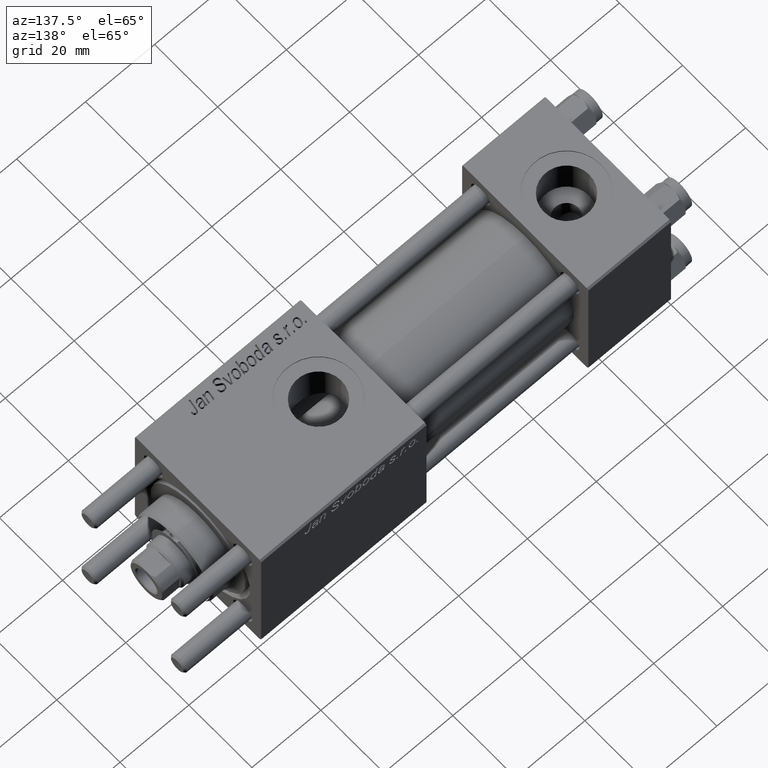
[diagram: clean part render]
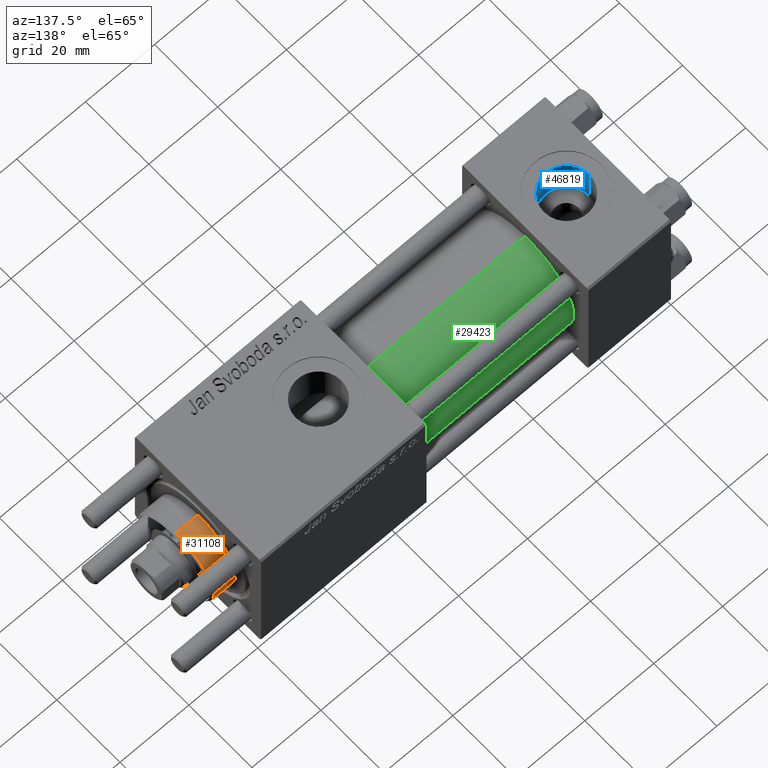
[diagram: same view with three faces highlighted in distinct colors, each labeled with its STEP entity id]
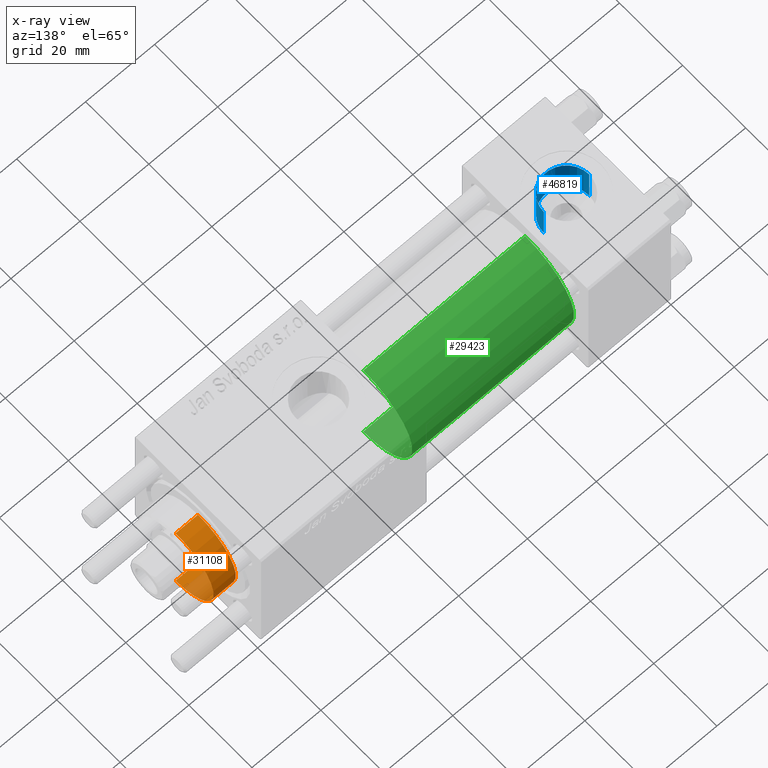
[diagram: x-ray of the same camera — body ghosted, the three highlighted faces saturated]
A machine part, auxiliary view with three faces highlighted in distinct colors.
The next image is the same camera in x-ray (body ghosted, the three faces saturated) — at least one of them is partly hidden behind the body in this view.
Their STEP definitions:

[orange] entity #31108 — the highlighted cylindrical surface (partial cylindrical patch) has radius 12 mm, axis along (-1, -0, 0).
#4211 = EDGE_CURVE ( 'NONE', #33591, #38277, #31449, .T. ) ;
#4609 = CARTESIAN_POINT ( 'NONE',  ( -12.00000000000000178, 0.000000000000000000, 28.69999999999999929 ) ) ;
#7167 = CARTESIAN_POINT ( 'NONE',  ( 12.00000000000000178, 1.469576158976824144E-15, 35.70000000000000284 ) ) ;
#12192 = CARTESIAN_POINT ( 'NONE',  ( 0.000000000000000000, 0.000000000000000000, 28.69999999999999929 ) ) ;
#15339 = VERTEX_POINT ( 'NONE', #40300 ) ;
#17027 = DIRECTION ( 'NONE',  ( -1.000000000000000000, 0.000000000000000000, 0.000000000000000000 ) ) ;
#20245 = DIRECTION ( 'NONE',  ( 1.000000000000000000, 0.000000000000000000, 0.000000000000000000 ) ) ;
#20886 = CIRCLE ( 'NONE', #48440, 12.00000000000000178 ) ;
#22110 = ORIENTED_EDGE ( 'NONE', *, *, #47330, .T. ) ;
#26205 = EDGE_CURVE ( 'NONE', #15339, #28042, #47159, .T. ) ;
#27081 = AXIS2_PLACEMENT_3D ( 'NONE', #42114, #50183, #37801 ) ;
#28042 = VERTEX_POINT ( 'NONE', #45214 ) ;
#31108 = ADVANCED_FACE ( 'NONE', ( #51842 ), #56445, .T. ) ;
#31449 = LINE ( 'NONE', #53891, #35784 ) ;
#33591 = VERTEX_POINT ( 'NONE', #42861 ) ;
#35784 = VECTOR ( 'NONE', #48999, 1000.000000000000000 ) ;
#36299 = CIRCLE ( 'NONE', #27081, 12.00000000000000178 ) ;
#36995 = DIRECTION ( 'NONE',  ( -0.000000000000000000, -0.000000000000000000, -1.000000000000000000 ) ) ;
#37714 = EDGE_LOOP ( 'NONE', ( #52486, #41106, #22110, #41461 ) ) ;
#37801 = DIRECTION ( 'NONE',  ( 1.000000000000000000, 0.000000000000000000, 0.000000000000000000 ) ) ;
#38277 = VERTEX_POINT ( 'NONE', #4609 ) ;
#38333 = CARTESIAN_POINT ( 'NONE',  ( 0.000000000000000000, 0.000000000000000000, 35.70000000000000284 ) ) ;
#38535 = DIRECTION ( 'NONE',  ( -0.000000000000000000, -0.000000000000000000, -1.000000000000000000 ) ) ;
#40300 = CARTESIAN_POINT ( 'NONE',  ( 12.00000000000000178, 1.469576158976824144E-15, 35.19999999999999574 ) ) ;
#41106 = ORIENTED_EDGE ( 'NONE', *, *, #26205, .T. ) ;
#41461 = ORIENTED_EDGE ( 'NONE', *, *, #4211, .F. ) ;
#41603 = AXIS2_PLACEMENT_3D ( 'NONE', #38333, #36995, #17027 ) ;
#42114 = CARTESIAN_POINT ( 'NONE',  ( 0.000000000000000000, 0.000000000000000000, 35.19999999999999574 ) ) ;
#42325 = EDGE_CURVE ( 'NONE', #33591, #15339, #36299, .T. ) ;
#42382 = VECTOR ( 'NONE', #38535, 1000.000000000000000 ) ;
#42861 = CARTESIAN_POINT ( 'NONE',  ( -12.00000000000000178, 0.000000000000000000, 35.19999999999999574 ) ) ;
#45214 = CARTESIAN_POINT ( 'NONE',  ( 12.00000000000000178, 1.469576158976824144E-15, 28.69999999999999929 ) ) ;
#47159 = LINE ( 'NONE', #7167, #42382 ) ;
#47330 = EDGE_CURVE ( 'NONE', #28042, #38277, #20886, .T. ) ;
#48440 = AXIS2_PLACEMENT_3D ( 'NONE', #12192, #56200, #20245 ) ;
#48999 = DIRECTION ( 'NONE',  ( -0.000000000000000000, -0.000000000000000000, -1.000000000000000000 ) ) ;
#50183 = DIRECTION ( 'NONE',  ( 0.000000000000000000, 0.000000000000000000, -1.000000000000000000 ) ) ;
#51842 = FACE_OUTER_BOUND ( 'NONE', #37714, .T. ) ;
#52486 = ORIENTED_EDGE ( 'NONE', *, *, #42325, .T. ) ;
#53891 = CARTESIAN_POINT ( 'NONE',  ( -12.00000000000000178, 0.000000000000000000, 35.70000000000000284 ) ) ;
#56200 = DIRECTION ( 'NONE',  ( 0.000000000000000000, 0.000000000000000000, 1.000000000000000000 ) ) ;
#56445 = CYLINDRICAL_SURFACE ( 'NONE', #41603, 12.00000000000000178 ) ;

[blue] entity #46819 — the highlighted cylindrical surface (edge-blend (fillet) strip) has radius 6.58 mm, axis along (0, 0, 1).
#2853 = EDGE_CURVE ( 'NONE', #7565, #17737, #18337, .T. ) ;
#5372 = ORIENTED_EDGE ( 'NONE', *, *, #54214, .T. ) ;
#6007 = DIRECTION ( 'NONE',  ( -0.000000000000000000, -0.000000000000000000, -1.000000000000000000 ) ) ;
#6368 = DIRECTION ( 'NONE',  ( 1.000000000000000000, 0.000000000000000000, 0.000000000000000000 ) ) ;
#7354 = CARTESIAN_POINT ( 'NONE',  ( 5.420000000000000817, 8.058175938389596335E-16, 9.165987261146492315 ) ) ;
#7565 = VERTEX_POINT ( 'NONE', #7354 ) ;
#10749 = ORIENTED_EDGE ( 'NONE', *, *, #2853, .T. ) ;
#13539 = AXIS2_PLACEMENT_3D ( 'NONE', #46066, #27672, #6368 ) ;
#14531 = DIRECTION ( 'NONE',  ( 0.000000000000000000, 0.000000000000000000, 1.000000000000000000 ) ) ;
#16325 = VERTEX_POINT ( 'NONE', #54430 ) ;
#17326 = VECTOR ( 'NONE', #53446, 1000.000000000000000 ) ;
#17722 = ORIENTED_EDGE ( 'NONE', *, *, #41247, .T. ) ;
#17737 = VERTEX_POINT ( 'NONE', #56345 ) ;
#18337 = LINE ( 'NONE', #49410, #17326 ) ;
#18858 = LINE ( 'NONE', #22880, #43936 ) ;
#22880 = CARTESIAN_POINT ( 'NONE',  ( 18.57999999999999829, 1.540743955509788682E-30, 9.199999999999995737 ) ) ;
#23907 = AXIS2_PLACEMENT_3D ( 'NONE', #48468, #14531, #48191 ) ;
#27672 = DIRECTION ( 'NONE',  ( -0.000000000000000000, -0.000000000000000000, 1.000000000000000000 ) ) ;
#28134 = EDGE_LOOP ( 'NONE', ( #17722, #10749, #5372, #53421 ) ) ;
#28887 = CIRCLE ( 'NONE', #33495, 6.579999999999999183 ) ;
#33067 = CIRCLE ( 'NONE', #23907, 6.579999999999999183 ) ;
#33495 = AXIS2_PLACEMENT_3D ( 'NONE', #41387, #6007, #49740 ) ;
#36308 = CYLINDRICAL_SURFACE ( 'NONE', #13539, 6.579999999999999183 ) ;
#41247 = EDGE_CURVE ( 'NONE', #55816, #7565, #28887, .T. ) ;
#41387 = CARTESIAN_POINT ( 'NONE',  ( 12.00000000000000000, 1.540743955509788682E-30, 9.165987261146492315 ) ) ;
#43936 = VECTOR ( 'NONE', #53957, 1000.000000000000000 ) ;
#46066 = CARTESIAN_POINT ( 'NONE',  ( 12.00000000000000000, 1.540743955509788682E-30, 9.199999999999995737 ) ) ;
#46819 = ADVANCED_FACE ( 'NONE', ( #53861 ), #36308, .F. ) ;
#46958 = CARTESIAN_POINT ( 'NONE',  ( 18.57999999999999829, 1.540743955509788682E-30, 9.165987261146492315 ) ) ;
#48191 = DIRECTION ( 'NONE',  ( 1.000000000000000000, 0.000000000000000000, 0.000000000000000000 ) ) ;
#48468 = CARTESIAN_POINT ( 'NONE',  ( 12.00000000000000000, 1.540743955509788682E-30, 19.79999999999999716 ) ) ;
#49052 = EDGE_CURVE ( 'NONE', #55816, #16325, #18858, .T. ) ;
#49410 = CARTESIAN_POINT ( 'NONE',  ( 5.420000000000000817, 8.058175938389596335E-16, 9.199999999999995737 ) ) ;
#49740 = DIRECTION ( 'NONE',  ( 1.000000000000000000, 0.000000000000000000, 0.000000000000000000 ) ) ;
#53421 = ORIENTED_EDGE ( 'NONE', *, *, #49052, .F. ) ;
#53446 = DIRECTION ( 'NONE',  ( -0.000000000000000000, -0.000000000000000000, 1.000000000000000000 ) ) ;
#53861 = FACE_OUTER_BOUND ( 'NONE', #28134, .T. ) ;
#53957 = DIRECTION ( 'NONE',  ( -0.000000000000000000, -0.000000000000000000, 1.000000000000000000 ) ) ;
#54214 = EDGE_CURVE ( 'NONE', #17737, #16325, #33067, .T. ) ;
#54430 = CARTESIAN_POINT ( 'NONE',  ( 18.57999999999999829, 1.540743955509788682E-30, 19.79999999999999716 ) ) ;
#55816 = VERTEX_POINT ( 'NONE', #46958 ) ;
#56345 = CARTESIAN_POINT ( 'NONE',  ( 5.420000000000000817, 8.058175938389596335E-16, 19.79999999999999716 ) ) ;

[green] entity #29423 — the highlighted cylindrical surface (partial cylindrical patch) has radius 15.5 mm, axis along (-1, -0, -0).
#1096 = DIRECTION ( 'NONE',  ( -1.000000000000000000, -0.000000000000000000, -0.000000000000000000 ) ) ;
#4080 = CARTESIAN_POINT ( 'NONE',  ( 24.00000000000000000, -2.602085213965210642E-15, 15.50000000000000000 ) ) ;
#7541 = AXIS2_PLACEMENT_3D ( 'NONE', #8370, #25923, #22155 ) ;
#8370 = CARTESIAN_POINT ( 'NONE',  ( 71.00000000000001421, -2.602085213965210642E-15, 0.000000000000000000 ) ) ;
#8476 = CIRCLE ( 'NONE', #14908, 15.50000000000000000 ) ;
#8833 = ORIENTED_EDGE ( 'NONE', *, *, #51184, .F. ) ;
#10347 = CARTESIAN_POINT ( 'NONE',  ( 24.00000000000000000, -7.038826752868131828E-16, -15.50000000000000000 ) ) ;
#10622 = EDGE_CURVE ( 'NONE', #54151, #22218, #8476, .T. ) ;
#14382 = ORIENTED_EDGE ( 'NONE', *, *, #28089, .T. ) ;
#14908 = AXIS2_PLACEMENT_3D ( 'NONE', #20307, #24904, #47057 ) ;
#17646 = EDGE_LOOP ( 'NONE', ( #22106, #14382, #48593, #8833 ) ) ;
#20307 = CARTESIAN_POINT ( 'NONE',  ( 71.00000000000001421, -2.602085213965210642E-15, 0.000000000000000000 ) ) ;
#22106 = ORIENTED_EDGE ( 'NONE', *, *, #10622, .F. ) ;
#22155 = DIRECTION ( 'NONE',  ( 0.000000000000000000, 0.000000000000000000, 1.000000000000000000 ) ) ;
#22218 = VERTEX_POINT ( 'NONE', #38462 ) ;
#24904 = DIRECTION ( 'NONE',  ( 1.000000000000000000, 0.000000000000000000, 0.000000000000000000 ) ) ;
#25105 = VERTEX_POINT ( 'NONE', #10347 ) ;
#25923 = DIRECTION ( 'NONE',  ( -1.000000000000000000, -0.000000000000000000, -0.000000000000000000 ) ) ;
#26738 = DIRECTION ( 'NONE',  ( 0.000000000000000000, 0.000000000000000000, 1.000000000000000000 ) ) ;
#27471 = CARTESIAN_POINT ( 'NONE',  ( 71.00000000000001421, -7.038826752868131828E-16, -15.50000000000000000 ) ) ;
#28089 = EDGE_CURVE ( 'NONE', #54151, #25105, #45765, .T. ) ;
#29423 = ADVANCED_FACE ( 'NONE', ( #35122 ), #47786, .T. ) ;
#35122 = FACE_OUTER_BOUND ( 'NONE', #17646, .T. ) ;
#38462 = CARTESIAN_POINT ( 'NONE',  ( 71.00000000000001421, -2.602085213965210642E-15, 15.50000000000000000 ) ) ;
#39986 = DIRECTION ( 'NONE',  ( 1.000000000000000000, 0.000000000000000000, 0.000000000000000000 ) ) ;
#40507 = LINE ( 'NONE', #44241, #50441 ) ;
#41741 = CARTESIAN_POINT ( 'NONE',  ( 71.00000000000001421, -7.038826752868131828E-16, -15.50000000000000000 ) ) ;
#42011 = DIRECTION ( 'NONE',  ( -1.000000000000000000, -0.000000000000000000, -0.000000000000000000 ) ) ;
#42147 = CIRCLE ( 'NONE', #56844, 15.50000000000000000 ) ;
#44241 = CARTESIAN_POINT ( 'NONE',  ( 71.00000000000001421, -2.602085213965210642E-15, 15.50000000000000000 ) ) ;
#45561 = VERTEX_POINT ( 'NONE', #4080 ) ;
#45765 = LINE ( 'NONE', #41741, #56180 ) ;
#47057 = DIRECTION ( 'NONE',  ( 0.000000000000000000, 0.000000000000000000, -1.000000000000000000 ) ) ;
#47786 = CYLINDRICAL_SURFACE ( 'NONE', #7541, 15.50000000000000000 ) ;
#48593 = ORIENTED_EDGE ( 'NONE', *, *, #49951, .T. ) ;
#49951 = EDGE_CURVE ( 'NONE', #25105, #45561, #42147, .T. ) ;
#50441 = VECTOR ( 'NONE', #1096, 1000.000000000000000 ) ;
#51184 = EDGE_CURVE ( 'NONE', #22218, #45561, #40507, .T. ) ;
#52923 = CARTESIAN_POINT ( 'NONE',  ( 24.00000000000000000, -2.602085213965210642E-15, 0.000000000000000000 ) ) ;
#54151 = VERTEX_POINT ( 'NONE', #27471 ) ;
#56180 = VECTOR ( 'NONE', #42011, 1000.000000000000000 ) ;
#56844 = AXIS2_PLACEMENT_3D ( 'NONE', #52923, #39986, #26738 ) ;